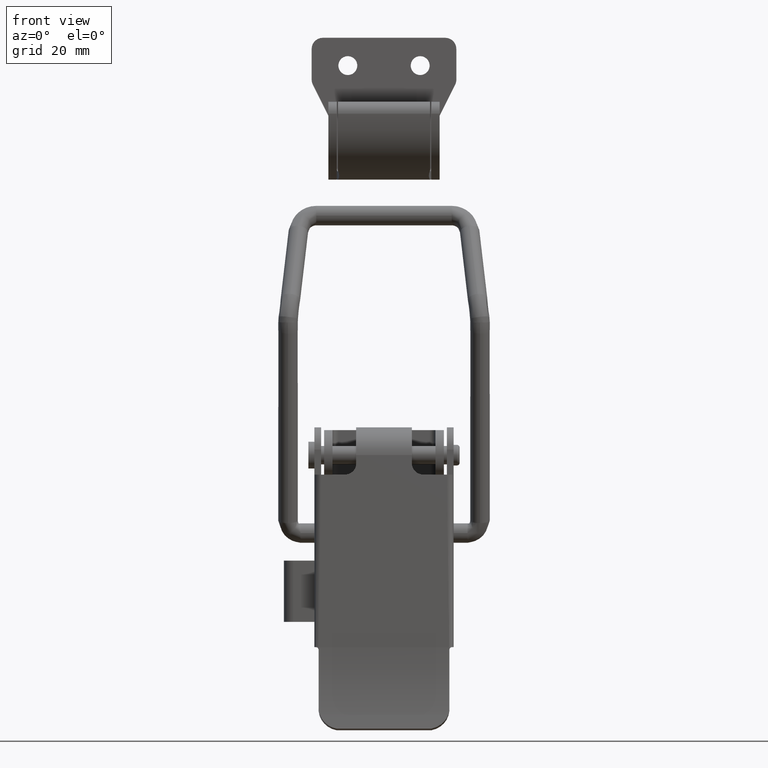
[diagram: clean part render]
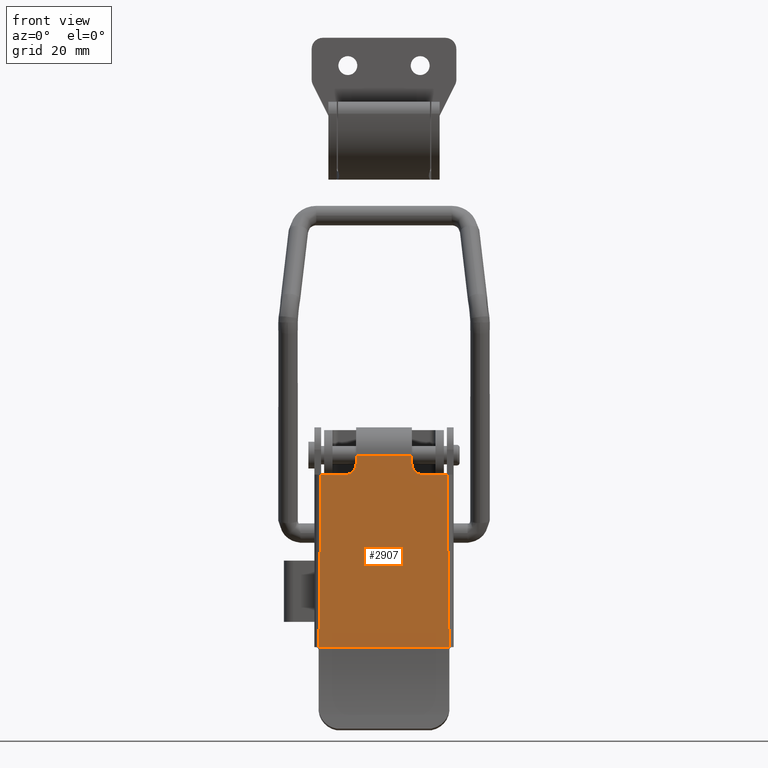
[diagram: same view with one face highlighted and labeled with its STEP entity id]
A machine part, front view. The second image highlights one B-rep face of the part: STEP entity #2907.
In plain terms, the highlighted planar face has unit normal (0, -1, 0).
Its self-contained STEP definition (entity closure, byte-faithful):
#8 = DIRECTION ( 'NONE',  ( -1.000000000000000000, -0.0000000000000000000, -0.0000000000000000000 ) ) ;
#105 = CIRCLE ( 'NONE', #16637, 2.000000000000000000 ) ;
#351 = CARTESIAN_POINT ( 'NONE',  ( -5.000000000014670000, -5.799999999999999800, 0.0000000000000000000 ) ) ;
#619 = DIRECTION ( 'NONE',  ( -0.0000000000000000000, -0.0000000000000000000, -1.000000000000000000 ) ) ;
#756 = LINE ( 'NONE', #5644, #8139 ) ;
#954 = ORIENTED_EDGE ( 'NONE', *, *, #16493, .T. ) ;
#1085 = VECTOR ( 'NONE', #8, 1000.000000000000000 ) ;
#1161 = ORIENTED_EDGE ( 'NONE', *, *, #3476, .T. ) ;
#1248 = LINE ( 'NONE', #3567, #16054 ) ;
#1277 = VERTEX_POINT ( 'NONE', #10663 ) ;
#1330 = EDGE_CURVE ( 'NONE', #14846, #6066, #3191, .T. ) ;
#1522 = EDGE_LOOP ( 'NONE', ( #7447, #17517, #9889, #1161, #9733, #5773, #15338, #8846, #4903, #954 ) ) ;
#1658 = VECTOR ( 'NONE', #15701, 1000.000000000000000 ) ;
#1940 = CARTESIAN_POINT ( 'NONE',  ( 11.30000000001454000, -5.799999999999999800, -3.500000000000000000 ) ) ;
#2409 = DIRECTION ( 'NONE',  ( -0.0000000000000000000, 1.000000000000000000, -0.0000000000000000000 ) ) ;
#2429 = DIRECTION ( 'NONE',  ( -0.0000000000000000000, 1.000000000000000000, -0.0000000000000000000 ) ) ;
#2444 = DIRECTION ( 'NONE',  ( -1.000000000000000000, -0.0000000000000000000, -0.0000000000000000000 ) ) ;
#2652 = CARTESIAN_POINT ( 'NONE',  ( -11.30000000001454000, -5.799999999999919900, -13.83333333333330400 ) ) ;
#2755 = CARTESIAN_POINT ( 'NONE',  ( 0.0000000000000000000, -5.799999999999999800, 0.0000000000000000000 ) ) ;
#2829 = VECTOR ( 'NONE', #14587, 1000.000000000000000 ) ;
#2907 = ADVANCED_FACE ( 'NONE', ( #15145 ), #7417, .T. ) ;
#3191 = LINE ( 'NONE', #14987, #6875 ) ;
#3328 = CARTESIAN_POINT ( 'NONE',  ( 11.70000000001454100, -5.799999999999919900, -24.16666666666663600 ) ) ;
#3347 = CARTESIAN_POINT ( 'NONE',  ( -5.000000000014670000, -5.799999999999909200, 0.0000000000000000000 ) ) ;
#3476 = EDGE_CURVE ( 'NONE', #12557, #11051, #105, .T. ) ;
#3567 = CARTESIAN_POINT ( 'NONE',  ( 0.0000000000000000000, -5.799999999999999800, -3.500000000000000000 ) ) ;
#4211 = CARTESIAN_POINT ( 'NONE',  ( 7.000000000014670000, -5.799999999999999800, -3.500000000000000000 ) ) ;
#4408 = VERTEX_POINT ( 'NONE', #10064 ) ;
#4761 = LINE ( 'NONE', #2755, #1085 ) ;
#4821 = CARTESIAN_POINT ( 'NONE',  ( -988.2499999999849900, -5.799999999999860400, -34.50000000000000000 ) ) ;
#4903 = ORIENTED_EDGE ( 'NONE', *, *, #1330, .T. ) ;
#5223 = AXIS2_PLACEMENT_3D ( 'NONE', #10772, #2429, #12179 ) ;
#5431 = CARTESIAN_POINT ( 'NONE',  ( -11.70000000001459900, -5.799999999999860400, -34.50000000000000000 ) ) ;
#5644 = CARTESIAN_POINT ( 'NONE',  ( 5.000000000014670000, -5.799999999999999800, 0.0000000000000000000 ) ) ;
#5773 = ORIENTED_EDGE ( 'NONE', *, *, #11101, .T. ) ;
#6057 = EDGE_CURVE ( 'NONE', #8450, #14846, #9975, .T. ) ;
#6066 = VERTEX_POINT ( 'NONE', #9363 ) ;
#6875 = VECTOR ( 'NONE', #2444, 1000.000000000000000 ) ;
#7308 = EDGE_CURVE ( 'NONE', #12557, #13084, #1248, .T. ) ;
#7417 = PLANE ( 'NONE',  #13255 ) ;
#7447 = ORIENTED_EDGE ( 'NONE', *, *, #11709, .T. ) ;
#7744 = CARTESIAN_POINT ( 'NONE',  ( 11.30000000001454000, -5.799999999999999800, -3.500000000000000000 ) ) ;
#7847 = B_SPLINE_CURVE_WITH_KNOTS ( 'NONE', 3,
 ( #12402, #2652, #13806, #5431 ),
 .UNSPECIFIED., .F., .F.,
 ( 4, 4 ),
 ( -0.03100000000000000000, -4.857225732735059900E-017 ),
 .UNSPECIFIED. ) ;
#8139 = VECTOR ( 'NONE', #619, 1000.000000000000000 ) ;
#8450 = VERTEX_POINT ( 'NONE', #9816 ) ;
#8825 = DIRECTION ( 'NONE',  ( 0.0000000000000000000, 0.0000000000000000000, -1.000000000000000000 ) ) ;
#8846 = ORIENTED_EDGE ( 'NONE', *, *, #6057, .T. ) ;
#8998 = EDGE_CURVE ( 'NONE', #12689, #8450, #16015, .T. ) ;
#9114 = B_SPLINE_CURVE_WITH_KNOTS ( 'NONE', 3,
 ( #1940, #12952, #3328, #13072 ),
 .UNSPECIFIED., .F., .F.,
 ( 4, 4 ),
 ( -0.03100000000000000000, -4.857225732735059900E-017 ),
 .UNSPECIFIED. ) ;
#9363 = CARTESIAN_POINT ( 'NONE',  ( -11.30000000001454000, -5.799999999999999800, -3.500000000000000000 ) ) ;
#9733 = ORIENTED_EDGE ( 'NONE', *, *, #16801, .F. ) ;
#9816 = CARTESIAN_POINT ( 'NONE',  ( -5.000000000014670000, -5.799999999999999800, -1.500000000000000000 ) ) ;
#9889 = ORIENTED_EDGE ( 'NONE', *, *, #7308, .F. ) ;
#9975 = CIRCLE ( 'NONE', #5223, 2.000000000000000000 ) ;
#10064 = CARTESIAN_POINT ( 'NONE',  ( 11.70000000001459900, -5.799999999999860400, -34.50000000000000000 ) ) ;
#10663 = CARTESIAN_POINT ( 'NONE',  ( -11.70000000001459900, -5.799999999999860400, -34.50000000000000000 ) ) ;
#10748 = CARTESIAN_POINT ( 'NONE',  ( 7.000000000014670000, -5.799999999993589800, -1.500000000000000000 ) ) ;
#10772 = CARTESIAN_POINT ( 'NONE',  ( -7.000000000014670000, -5.799999999993589800, -1.500000000000000000 ) ) ;
#11051 = VERTEX_POINT ( 'NONE', #15440 ) ;
#11101 = EDGE_CURVE ( 'NONE', #14285, #12689, #4761, .T. ) ;
#11709 = EDGE_CURVE ( 'NONE', #1277, #4408, #17203, .T. ) ;
#11934 = DIRECTION ( 'NONE',  ( 1.000000000000000000, -0.0000000000000000000, -0.0000000000000000000 ) ) ;
#12157 = DIRECTION ( 'NONE',  ( 0.0000000000000000000, 0.0000000000000000000, -1.000000000000000000 ) ) ;
#12179 = DIRECTION ( 'NONE',  ( 0.0000000000000000000, 0.0000000000000000000, -1.000000000000000000 ) ) ;
#12231 = CARTESIAN_POINT ( 'NONE',  ( 5.000000000014670000, -5.799999999999909200, 0.0000000000000000000 ) ) ;
#12402 = CARTESIAN_POINT ( 'NONE',  ( -11.30000000001454000, -5.799999999999999800, -3.500000000000000000 ) ) ;
#12557 = VERTEX_POINT ( 'NONE', #4211 ) ;
#12689 = VERTEX_POINT ( 'NONE', #3347 ) ;
#12952 = CARTESIAN_POINT ( 'NONE',  ( 11.30000000001454000, -5.799999999999919900, -13.83333333333330400 ) ) ;
#13039 = EDGE_CURVE ( 'NONE', #13084, #4408, #9114, .T. ) ;
#13072 = CARTESIAN_POINT ( 'NONE',  ( 11.70000000001459900, -5.799999999999860400, -34.50000000000000000 ) ) ;
#13084 = VERTEX_POINT ( 'NONE', #7744 ) ;
#13255 = AXIS2_PLACEMENT_3D ( 'NONE', #14366, #17178, #8825 ) ;
#13806 = CARTESIAN_POINT ( 'NONE',  ( -11.70000000001454100, -5.799999999999919900, -24.16666666666663600 ) ) ;
#13993 = CARTESIAN_POINT ( 'NONE',  ( -7.000000000014670000, -5.799999999999999800, -3.500000000000000000 ) ) ;
#14285 = VERTEX_POINT ( 'NONE', #12231 ) ;
#14366 = CARTESIAN_POINT ( 'NONE',  ( 0.0000000000000000000, -5.799999999999999800, 0.0000000000000000000 ) ) ;
#14587 = DIRECTION ( 'NONE',  ( 1.000000000000000000, 0.0000000000000000000, 0.0000000000000000000 ) ) ;
#14846 = VERTEX_POINT ( 'NONE', #13993 ) ;
#14987 = CARTESIAN_POINT ( 'NONE',  ( 0.0000000000000000000, -5.799999999999999800, -3.500000000000000000 ) ) ;
#15145 = FACE_OUTER_BOUND ( 'NONE', #1522, .T. ) ;
#15338 = ORIENTED_EDGE ( 'NONE', *, *, #8998, .T. ) ;
#15440 = CARTESIAN_POINT ( 'NONE',  ( 5.000000000014670000, -5.799999999999999800, -1.500000000000000000 ) ) ;
#15701 = DIRECTION ( 'NONE',  ( -0.0000000000000000000, -0.0000000000000000000, -1.000000000000000000 ) ) ;
#16015 = LINE ( 'NONE', #351, #1658 ) ;
#16054 = VECTOR ( 'NONE', #11934, 1000.000000000000000 ) ;
#16493 = EDGE_CURVE ( 'NONE', #6066, #1277, #7847, .T. ) ;
#16637 = AXIS2_PLACEMENT_3D ( 'NONE', #10748, #2409, #12157 ) ;
#16801 = EDGE_CURVE ( 'NONE', #14285, #11051, #756, .T. ) ;
#17178 = DIRECTION ( 'NONE',  ( 0.0000000000000000000, -1.000000000000000000, 0.0000000000000000000 ) ) ;
#17203 = LINE ( 'NONE', #4821, #2829 ) ;
#17517 = ORIENTED_EDGE ( 'NONE', *, *, #13039, .F. ) ;